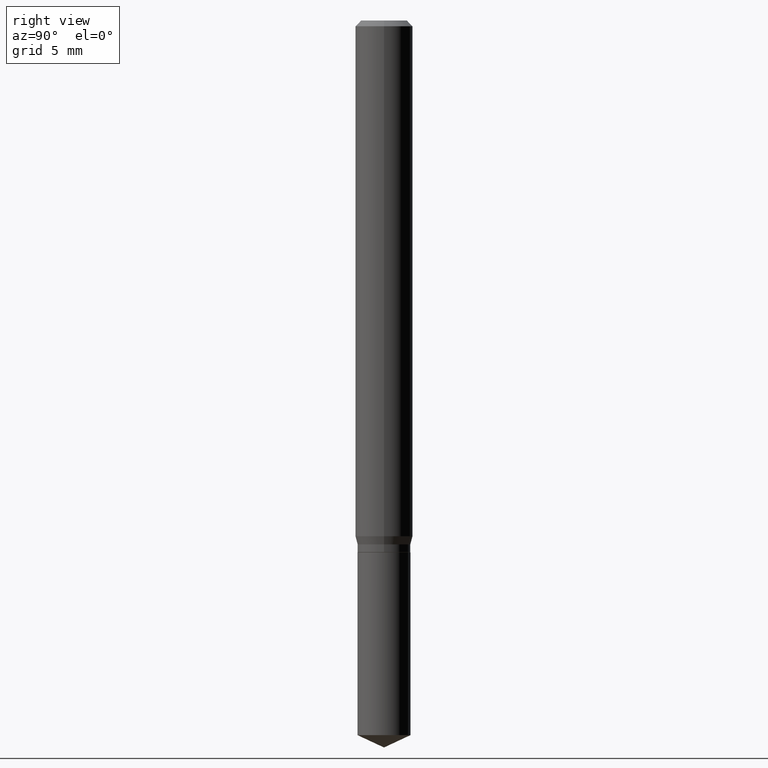
[diagram: clean part render]
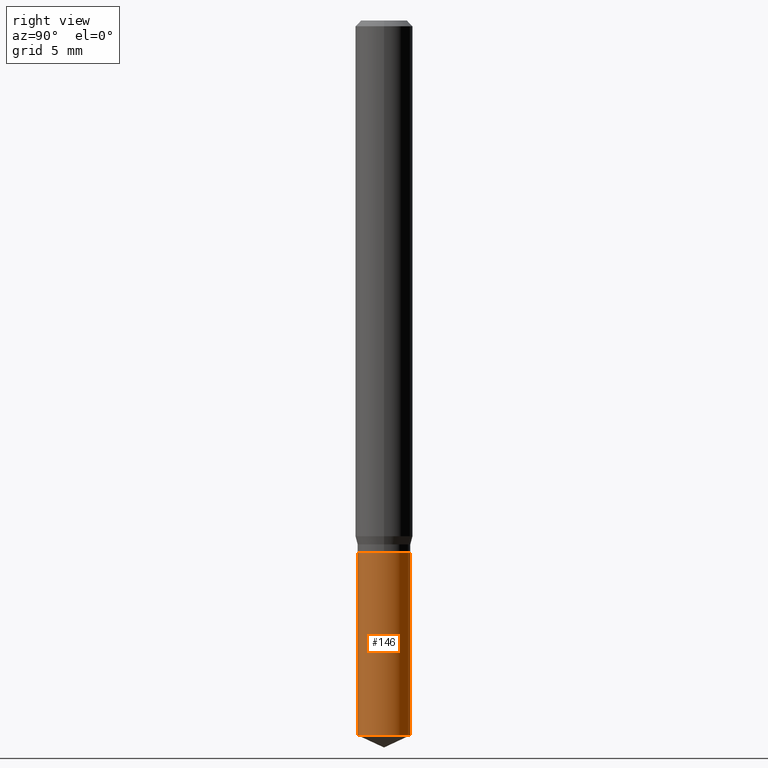
[diagram: same view with one face highlighted and labeled with its STEP entity id]
A machine part, right view. The second image highlights one B-rep face of the part: STEP entity #146.
In plain terms, the highlighted cylindrical surface (edge-blend (fillet) strip) has radius 1.3856 mm, axis along (-0, 0, 1).
Its self-contained STEP definition (entity closure, byte-faithful):
#34 = EDGE_CURVE ( 'NONE', #145, #56, #282, .T. ) ;
#37 = CARTESIAN_POINT ( 'NONE',  ( -3.809206140677591118E-16, -0.05455000000000382460, -1.094499999999999806 ) ) ;
#42 = CARTESIAN_POINT ( 'NONE',  ( 2.676565608369631794E-29, -3.821426325363822773E-15, -1.094499999999999806 ) ) ;
#49 = CARTESIAN_POINT ( 'NONE',  ( 3.596456561951116999E-29, -5.134797467989521124E-15, -1.470662917247645085 ) ) ;
#56 = VERTEX_POINT ( 'NONE', #258 ) ;
#75 = EDGE_LOOP ( 'NONE', ( #274, #131, #161, #96 ) ) ;
#79 = CARTESIAN_POINT ( 'NONE',  ( -3.809206140677498427E-16, -0.05455000000000512217, -1.470662917247644863 ) ) ;
#93 = CARTESIAN_POINT ( 'NONE',  ( 3.876010623571613830E-16, 0.05454999999999617794, -1.094500000000000028 ) ) ;
#95 = DIRECTION ( 'NONE',  ( -2.445458899330790108E-29, 3.491495526022433205E-15, 1.000000000000000000 ) ) ;
#96 = ORIENTED_EDGE ( 'NONE', *, *, #320, .F. ) ;
#131 = ORIENTED_EDGE ( 'NONE', *, *, #160, .T. ) ;
#133 = VERTEX_POINT ( 'NONE', #459 ) ;
#143 = AXIS2_PLACEMENT_3D ( 'NONE', #49, #205, #472 ) ;
#145 = VERTEX_POINT ( 'NONE', #79 ) ;
#146 = ADVANCED_FACE ( 'NONE', ( #352 ), #225, .T. ) ;
#160 = EDGE_CURVE ( 'NONE', #56, #133, #200, .T. ) ;
#161 = ORIENTED_EDGE ( 'NONE', *, *, #403, .F. ) ;
#175 = DIRECTION ( 'NONE',  ( -6.982962677686265922E-15, -1.000000000000000000, 2.503985328748179054E-15 ) ) ;
#200 = LINE ( 'NONE', #93, #217 ) ;
#203 = CARTESIAN_POINT ( 'NONE',  ( 2.676565608369631794E-29, -3.821426325363822773E-15, -1.094499999999999806 ) ) ;
#205 = DIRECTION ( 'NONE',  ( -2.445458899330790108E-29, 3.491495526022433205E-15, 1.000000000000000000 ) ) ;
#217 = VECTOR ( 'NONE', #429, 39.37007874015748143 ) ;
#225 = CYLINDRICAL_SURFACE ( 'NONE', #407, 0.05455000000000000127 ) ;
#237 = CIRCLE ( 'NONE', #365, 0.05455000000000000127 ) ;
#258 = CARTESIAN_POINT ( 'NONE',  ( 3.876010623571705043E-16, 0.05454999999999486648, -1.470662917247645307 ) ) ;
#273 = DIRECTION ( 'NONE',  ( -6.982962677686265922E-15, -1.000000000000000000, 2.503985328748179054E-15 ) ) ;
#274 = ORIENTED_EDGE ( 'NONE', *, *, #34, .T. ) ;
#282 = CIRCLE ( 'NONE', #143, 0.05455000000000000127 ) ;
#311 = DIRECTION ( 'NONE',  ( -2.445458899330790108E-29, 3.491495526022433599E-15, 1.000000000000000000 ) ) ;
#320 = EDGE_CURVE ( 'NONE', #145, #385, #356, .T. ) ;
#352 = FACE_OUTER_BOUND ( 'NONE', #75, .T. ) ;
#355 = DIRECTION ( 'NONE',  ( -2.445458899330790108E-29, 3.491495526022433205E-15, 1.000000000000000000 ) ) ;
#356 = LINE ( 'NONE', #37, #461 ) ;
#365 = AXIS2_PLACEMENT_3D ( 'NONE', #203, #95, #175 ) ;
#385 = VERTEX_POINT ( 'NONE', #433 ) ;
#403 = EDGE_CURVE ( 'NONE', #385, #133, #237, .T. ) ;
#407 = AXIS2_PLACEMENT_3D ( 'NONE', #42, #355, #273 ) ;
#429 = DIRECTION ( 'NONE',  ( -2.445458899330790108E-29, 3.491495526022433599E-15, 1.000000000000000000 ) ) ;
#433 = CARTESIAN_POINT ( 'NONE',  ( -3.809206140677591118E-16, -0.05455000000000382460, -1.094499999999999806 ) ) ;
#459 = CARTESIAN_POINT ( 'NONE',  ( 3.876010623571706522E-16, 0.05454999999999618487, -1.094500000000000028 ) ) ;
#461 = VECTOR ( 'NONE', #311, 39.37007874015748143 ) ;
#472 = DIRECTION ( 'NONE',  ( -6.982962677686265922E-15, -1.000000000000000000, 5.007970657496358109E-15 ) ) ;